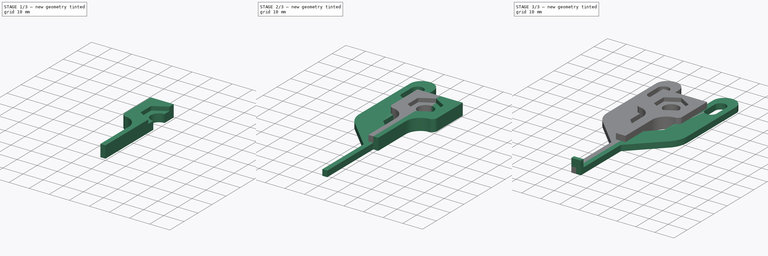
[diagram: build sequence overview — one tinted view per stage of 3, left to right]
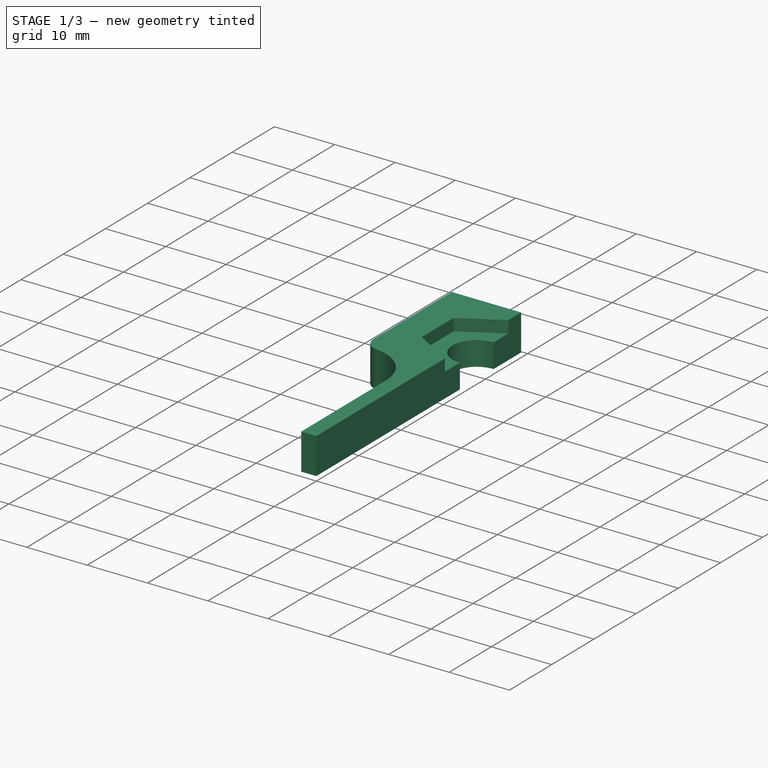
[diagram: stage 1 of 3 — iso view after this stage's code; geometry added in this stage tinted green]
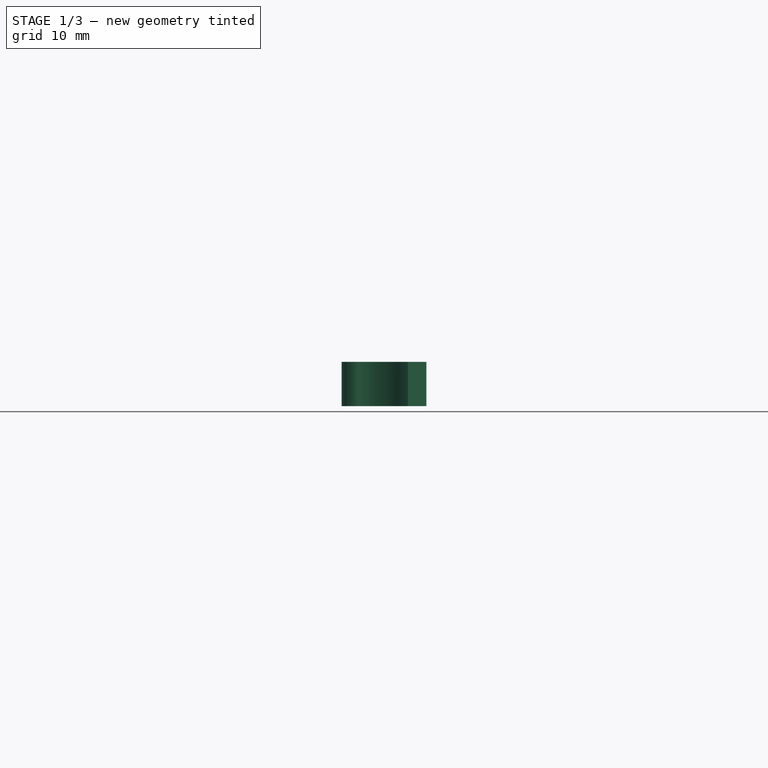
[diagram: stage 1 of 3 — front view after this stage's code; geometry added in this stage tinted green]
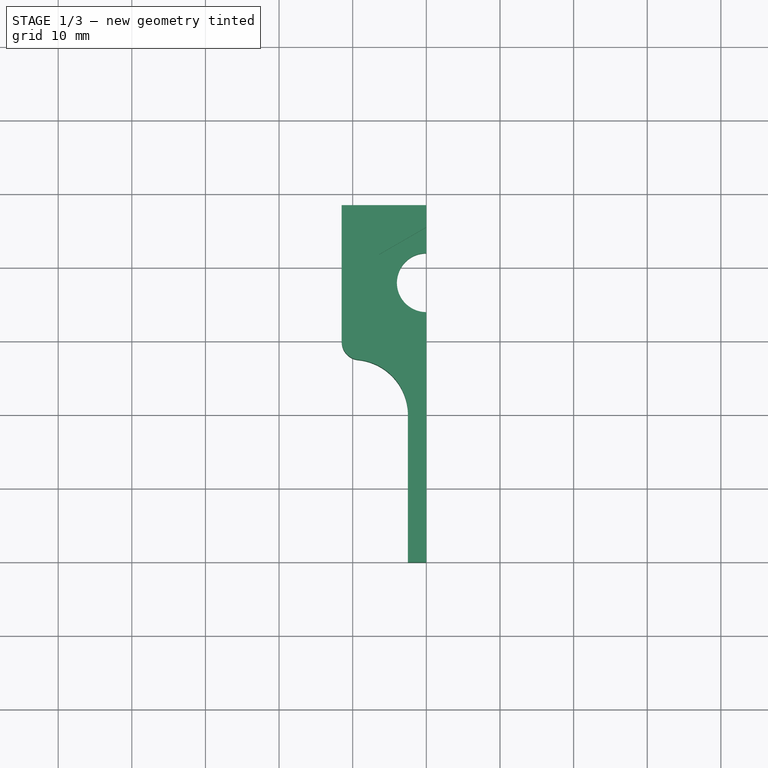
[diagram: stage 1 of 3 — top view after this stage's code; geometry added in this stage tinted green]
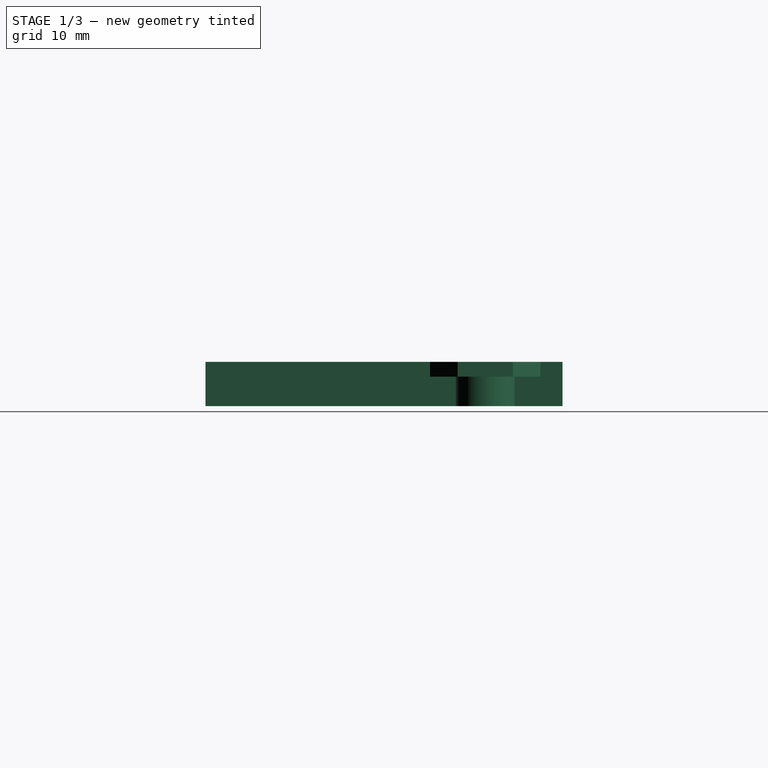
[diagram: stage 1 of 3 — right view after this stage's code; geometry added in this stage tinted green]
FCSTD DOCUMENT  (FreeCAD 0.19R24291 (Git))
Label: держатель для иголок 3
License: All rights reserved
LicenseURL: http://en.wikipedia.org/wiki/All_rights_reserved
objects: Sketcher::SketchObject×5, PartDesign::Pad×3, PartDesign::Mirrored×2, PartDesign::Body×2, PartDesign::Pocket×1, App::Part×1
note: 17 computed .brp shape members not serialized (recipe doc carries the construction recipe); baked Part::Feature solids carry a one-line shape summary decoded from their .brp

FEATURE [PartDesign::Body] Body
  Group = -> [Sketch,Pad,Sketch001,Pad001,Sketch002,Mirrored]
  Origin = -> Origin
  Tip = -> Mirrored
FEATURE [Sketcher::SketchObject] Sketch003
  FullyConstrained = false
  MapMode = 5
  Support = -> [XY_Plane002]
  sketch-geometry (20):
    g0: LineSegment StartX=-2.5 StartY=0 StartZ=0 EndX=-2.5 EndY=-20.0368 EndZ=0
    g1: LineSegment StartX=-2.5 StartY=-20.0368 StartZ=0 EndX=-9e-16 EndY=-20.0368 EndZ=0
    g2: ArcOfCircle CenterX=-10 CenterY=0 CenterZ=0 NormalX=0 NormalY=0 NormalZ=1 AngleXU=0 Radius=7.5 StartAngle=0 EndAngle=1.46759
    g3: LineSegment StartX=-9.22736 StartY=7.4601 StartZ=0 EndX=-9.25755 EndY=7.46322 EndZ=0
    g4: ArcOfCircle CenterX=-9 CenterY=9.94992 CenterZ=0 NormalX=0 NormalY=0 NormalZ=1 AngleXU=0 Radius=2.5 StartAngle=3.14159 EndAngle=4.60919
    g5: LineSegment StartX=-11.5 StartY=9.94992 StartZ=0 EndX=-11.5 EndY=28.4632 EndZ=0
    g6: LineSegment StartX=-11.5 StartY=28.4632 StartZ=0 EndX=0 EndY=28.4632 EndZ=0
    g7: ArcOfCircle CenterX=0 CenterY=17.9632 CenterZ=0 NormalX=0 NormalY=0 NormalZ=1 AngleXU=0 Radius=4 StartAngle=1.5708 EndAngle=4.71239
    g8: LineSegment StartX=-7e-16 StartY=-20.0368 StartZ=0 EndX=-7e-16 EndY=13.9632 EndZ=0
    g9: LineSegment StartX=2e-16 StartY=21.9632 StartZ=0 EndX=0 EndY=28.4632 EndZ=0
    g10: LineSegment StartX=0 StartY=17.9632 StartZ=0 EndX=0 EndY=28.4632 EndZ=0
    g11: LineSegment StartX=0 StartY=17.9632 StartZ=0 EndX=0 EndY=7.46322 EndZ=0
    g12: LineSegment StartX=0 StartY=24.4632 StartZ=0 EndX=-5.62917 EndY=21.2132 EndZ=0
    g13: LineSegment StartX=-5.62917 StartY=21.2132 StartZ=0 EndX=-5.62917 EndY=14.7132 EndZ=0
    g14: LineSegment StartX=-5.62917 StartY=14.7132 StartZ=0 EndX=9e-16 EndY=11.4632 EndZ=0
    g15: LineSegment StartX=9e-16 StartY=11.4632 StartZ=0 EndX=5.62917 EndY=14.7132 EndZ=0
    g16: LineSegment StartX=5.62917 StartY=14.7132 StartZ=0 EndX=5.62917 EndY=21.2132 EndZ=0
    g17: LineSegment StartX=5.62917 StartY=21.2132 StartZ=0 EndX=0 EndY=24.4632 EndZ=0
    g18: Circle CenterX=0 CenterY=17.9632 CenterZ=0 NormalX=0 NormalY=0 NormalZ=1 AngleXU=0 Radius=6.5
    g19: GeomPoint X=-6.5 Y=17.9632 Z=0
  constraints (55):
    c: Coincident(g0,g1)
    c: Horizontal(g1)
    c: Vertical(g0)
    c: PointOnObject(g2,g-1)
    c: Coincident(g2,g0)
    c: Coincident(g3,g2)
    c: Coincident(g4,g3)
    c: Coincident(g5,g4)
    c: Vertical(g5)
    c: PointOnObject(g6,g-2)
    c: Horizontal(g6)
    c: Tangent(g5,g4)
    c: Tangent(g4,g3)
    c: Tangent(g3,g2)
    c: Coincident(g6,g5)
    c: PointOnObject(g7,g-2)
    c: PointOnObject(g7,g-2)
    c: PointOnObject(g7,g-2)
    c: Coincident(g8,g7)
    c: Vertical(g8)
    c: Coincident(g9,g7)
    c: Coincident(g9,g6)
    c: Diameter(g7) = 8
    c: Distance(g7,g1) = 38
    c: Distance(g1) = 2.5
    c: PointOnObject(g0,g-1)
    c: Coincident(g10,g7)
    c: Diameter(g4) = 5
    c: Coincident(g6,g10)
    c: Diameter(g2) = 15
    c: Coincident(g11,g7)
    c: PointOnObject(g11,g8)
    c: Horizontal(g3,g11)
    c: Equal(g11,g10)
    c: Coincident(g8,g1)
    c: Coincident(g12,g13)
    c: Coincident(g13,g14)
    c: Coincident(g14,g15)
    c: Coincident(g15,g16)
    c: Coincident(g16,g17)
    c: Coincident(g17,g12)
    c: Equal(g12, g13-g17) x5
    c: PointOnObject(g12,g18)
    c: PointOnObject(g13,g18)
    c: PointOnObject(g14,g18)
    c: PointOnObject(g15,g18)
    c: PointOnObject(g16,g18)
    c: PointOnObject(g17,g18)
    c: Coincident(g18,g7)
    c: PointOnObject(g17,g9)
    c: Diameter(g18) = 13
    c: Distance(g12,g6) = 4
    c: PointOnObject(g19,g18)
    c: Horizontal(g19,g7)
    c: Distance(g19,g5) = 5
FEATURE [PartDesign::Pad] Pad002
  Direction = (1,1,1)
  Length = 6
  Length2 = 100
  Profile = -> Sketch003
  Type = 0
FEATURE [Sketcher::SketchObject] Sketch004
  ExternalGeometry = -> [Pad002]
  FullyConstrained = true
  MapMode = 5
  Placement = pos=(0,0,6) rot=(0,0,1;0rad)
  Support = -> [Pad002]
  sketch-geometry (7):
    g0: LineSegment StartX=0 StartY=25.4688 StartZ=0 EndX=-6.5 EndY=21.716 EndZ=0
    g1: LineSegment StartX=-6.5 StartY=21.716 StartZ=0 EndX=-6.5 EndY=14.2104 EndZ=0
    g2: LineSegment StartX=-6.5 StartY=14.2104 StartZ=0 EndX=8e-15 EndY=10.4577 EndZ=0
    g3: LineSegment StartX=8e-15 StartY=10.4577 StartZ=0 EndX=6.5 EndY=14.2104 EndZ=0
    g4: LineSegment StartX=6.5 StartY=14.2104 StartZ=0 EndX=6.5 EndY=21.716 EndZ=0
    g5: LineSegment StartX=6.5 StartY=21.716 StartZ=0 EndX=0 EndY=25.4688 EndZ=0
    g6: Circle CenterX=0 CenterY=17.9632 CenterZ=0 NormalX=0 NormalY=0 NormalZ=1 AngleXU=0 Radius=7.50555
  constraints (16):
    c: Coincident(g0,g1)
    c: Coincident(g1,g2)
    c: Coincident(g2,g3)
    c: Coincident(g3,g4)
    c: Coincident(g4,g5)
    c: Coincident(g5,g0)
    c: Equal(g0, g1-g5) x5
    c: PointOnObject(g0,g6)
    c: PointOnObject(g1,g6)
    c: PointOnObject(g2,g6)
    c: PointOnObject(g3,g6)
    c: PointOnObject(g4,g6)
    c: PointOnObject(g5,g6)
    c: Coincident(g6,g-3)
    c: PointOnObject(g5,g-2)
    c: Distance(g3,g1) = 13
FEATURE [PartDesign::Pocket] Pocket
  BaseFeature = -> Pad002
  Length = 2
  Length2 = 100
  Profile = -> Sketch004
  Type = 0
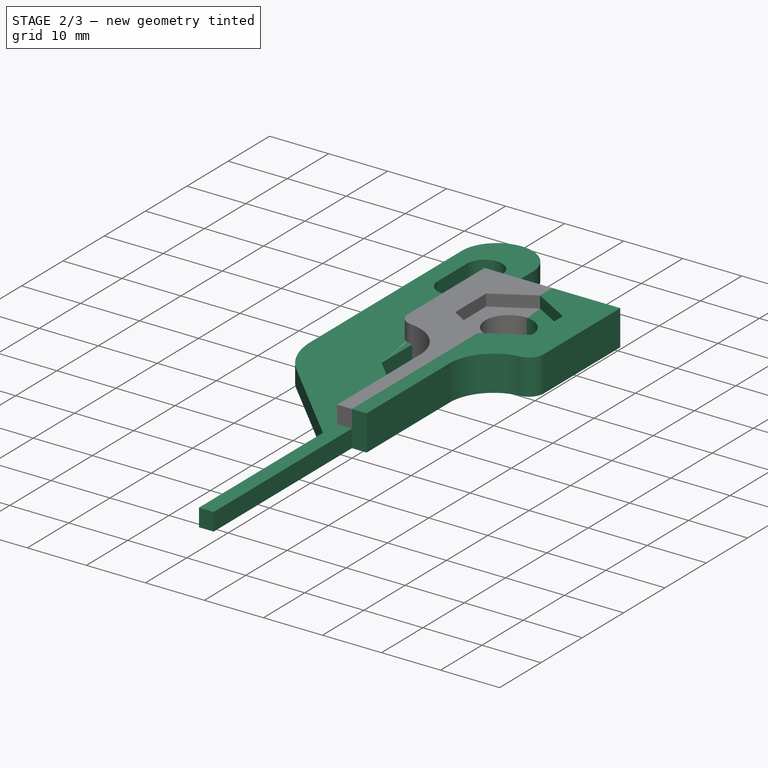
[diagram: stage 2 of 3 — iso view after this stage's code; geometry added in this stage tinted green]
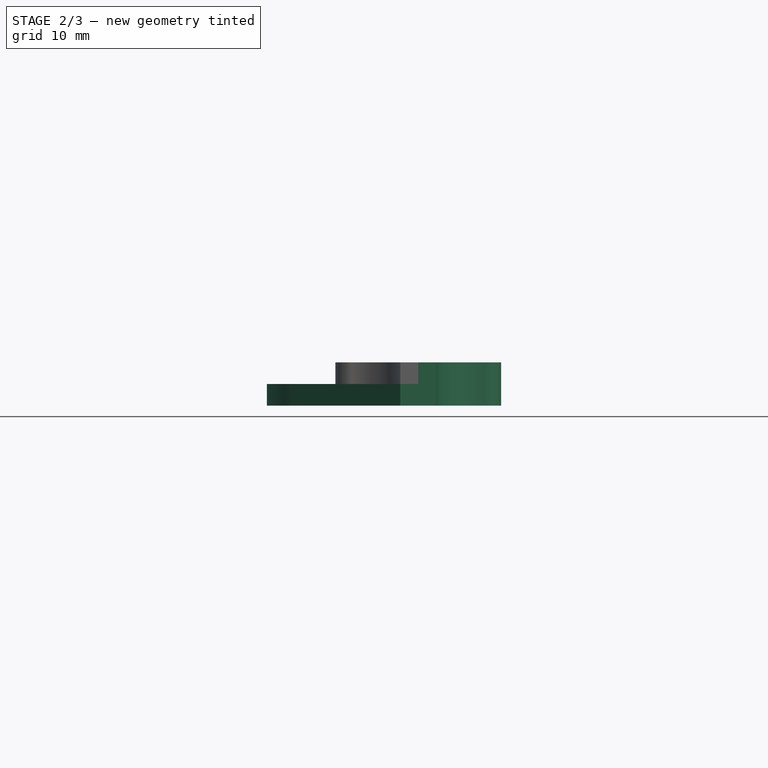
[diagram: stage 2 of 3 — front view after this stage's code; geometry added in this stage tinted green]
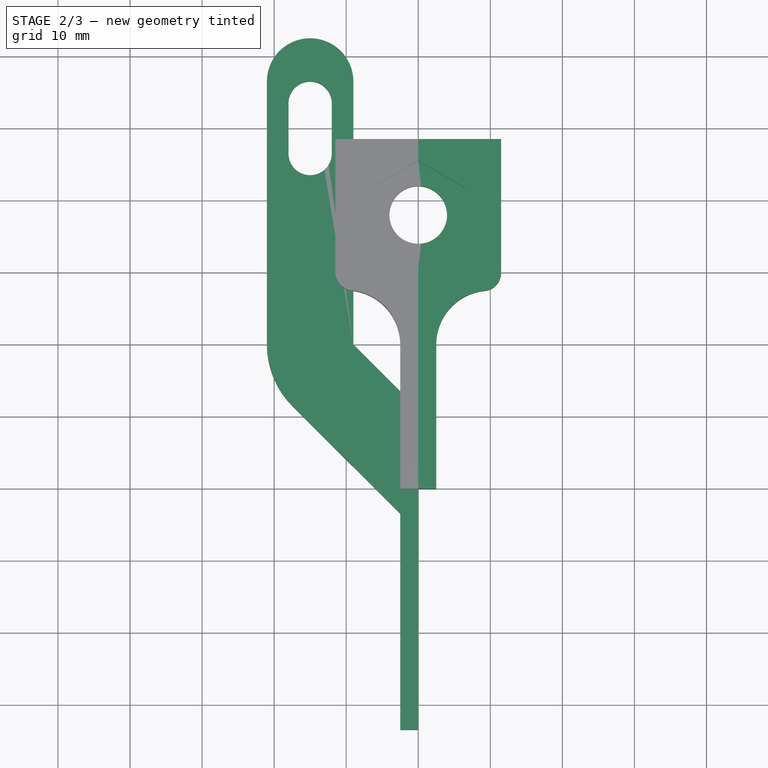
[diagram: stage 2 of 3 — top view after this stage's code; geometry added in this stage tinted green]
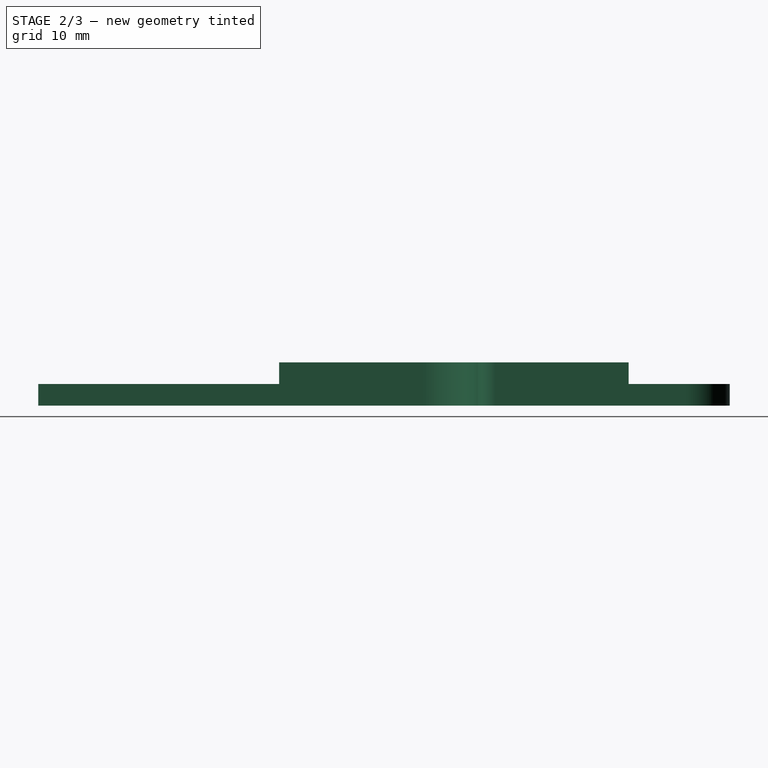
[diagram: stage 2 of 3 — right view after this stage's code; geometry added in this stage tinted green]
FEATURE [Sketcher::SketchObject] Sketch
  FullyConstrained = false
  MapMode = 5
  Support = -> [XY_Plane]
  sketch-geometry (16):
    g0: ArcOfCircle CenterX=-15 CenterY=33.5 CenterZ=0 NormalX=0 NormalY=0 NormalZ=1 AngleXU=0 Radius=3 StartAngle=-9e-16 EndAngle=3.14159
    g1: ArcOfCircle CenterX=-15 CenterY=26.5 CenterZ=0 NormalX=0 NormalY=0 NormalZ=1 AngleXU=0 Radius=3 StartAngle=3.14159 EndAngle=6.28319
    g2: LineSegment StartX=-18 StartY=33.5 StartZ=0 EndX=-18 EndY=26.5 EndZ=0
    g3: LineSegment StartX=-12 StartY=33.5 StartZ=0 EndX=-12 EndY=26.5 EndZ=0
    g4: ArcOfCircle CenterX=-15 CenterY=36.5 CenterZ=0 NormalX=0 NormalY=0 NormalZ=1 AngleXU=0 Radius=6 StartAngle=4e-16 EndAngle=3.14159
    g5: LineSegment StartX=-21 StartY=36.5 StartZ=0 EndX=-21 EndY=0 EndZ=0
    g6: LineSegment StartX=-9 StartY=36.5 StartZ=0 EndX=-9 EndY=0 EndZ=0
    g7: LineSegment StartX=-15 StartY=23.5 StartZ=0 EndX=-15 EndY=30 EndZ=0
    g8: LineSegment StartX=-15 StartY=30 StartZ=0 EndX=-15 EndY=36.5 EndZ=0
    g9: LineSegment StartX=-9 StartY=0 StartZ=0 EndX=0 EndY=-9 EndZ=0
    g10: LineSegment StartX=-2.5 StartY=-23.4706 StartZ=0 EndX=-2.5 EndY=-53.4706 EndZ=0
    g11: LineSegment StartX=-2.5 StartY=-23.4706 StartZ=0 EndX=-17.4853 EndY=-8.48527 EndZ=0
    g12: LineSegment StartX=-8.5237 StartY=-0.476298 StartZ=0 EndX=-17.009 EndY=-8.96158 EndZ=0
    g13: ArcOfCircle CenterX=-9 CenterY=0 CenterZ=0 NormalX=0 NormalY=0 NormalZ=1 AngleXU=0 Radius=12 StartAngle=3.14159 EndAngle=3.92699
    g14: LineSegment StartX=-2.5 StartY=-53.4706 StartZ=0 EndX=0 EndY=-53.4706 EndZ=0
    g15: LineSegment StartX=0 StartY=-53.4706 StartZ=0 EndX=0 EndY=-9 EndZ=0
  constraints (46):
    c: Tangent(g0,g3) = 1.5708
    c: Tangent(g0,g2) = -1.5708
    c: Tangent(g2,g1) = -1.5708
    c: Tangent(g3,g1) = 1.5708
    c: Vertical(g2)
    c: Equal(g0,g1)
    c: Diameter(g0) = 6
    c: Tangent(g4,g6) = 1.5708
    c: Tangent(g4,g5) = -1.5708
    c: Vertical(g5)
    c: Horizontal(g6,g5)
    c: PointOnObject(g5,g-1)
    c: PointOnObject(g7,g1)
    c: Vertical(g7)
    c: PointOnObject(g8,g0)
    c: Vertical(g8)
    c: Equal(g7,g8)
    c: Coincident(g8,g7)
    c: PointOnObject(g1,g7)
    c: Distance(g7,g-1) = 30
    c: Vertical(g6)
    c: Coincident(g8,g4)
    c: Diameter(g4) = 12
    c: Distance(g7,g-2) = 15
    c: Distance(g4,g7) = 13
    c: Coincident(g9,g6)
    c: PointOnObject(g9,g-2)
    c: Vertical(g10)
    c: Coincident(g11,g10)
    c: PointOnObject(g12,g9)
    c: PointOnObject(g12,g11)
    c: Perpendicular(g12,g9)
    c: Perpendicular(g11,g12)
    c: Distance(g10,g-2) = 2.5
    c: Distance(g12) = 12
    c: Coincident(g13,g6)
    c: Coincident(g13,g5)
    c: Coincident(g13,g11)
    c: Angle(g9,g6) = 2.35619
    c: DistanceY(g10,g10) = 30
    c: Coincident(g14,g10)
    c: PointOnObject(g14,g-2)
    c: Horizontal(g14)
    c: Coincident(g15,g14)
    c: Coincident(g15,g9)
    c: DistanceY(g14,g7) = 83.4706
FEATURE [PartDesign::Pad] Pad
  Direction = (1,1,1)
  Length = 3
  Length2 = 100
  Profile = -> Sketch
  Type = 0
FEATURE [PartDesign::Mirrored] Mirrored001
  BaseFeature = -> Pocket
  MirrorPlane = -> Sketch003 [V_Axis]
  Originals = -> [Pad002,Pocket]
FEATURE [PartDesign::Body] Body001
  Group = -> [Sketch003,Pad002,Sketch004,Pocket,Mirrored001]
  Origin = -> Origin002
  Tip = -> Mirrored001
FEATURE [App::Part] Part
  Group = -> [Body,Body001]
  Origin = -> Origin001
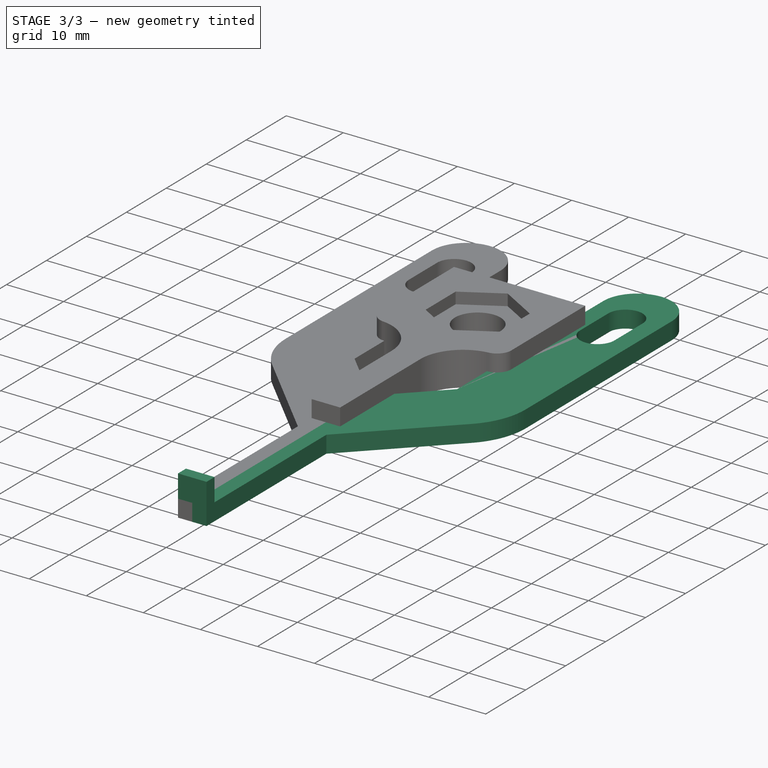
[diagram: stage 3 of 3 — iso view after this stage's code; geometry added in this stage tinted green]
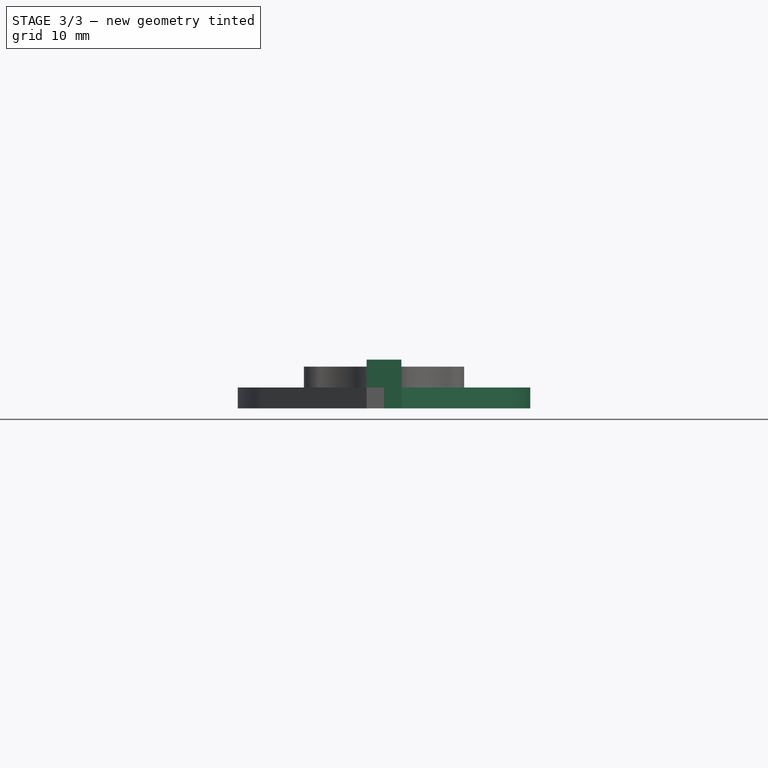
[diagram: stage 3 of 3 — front view after this stage's code; geometry added in this stage tinted green]
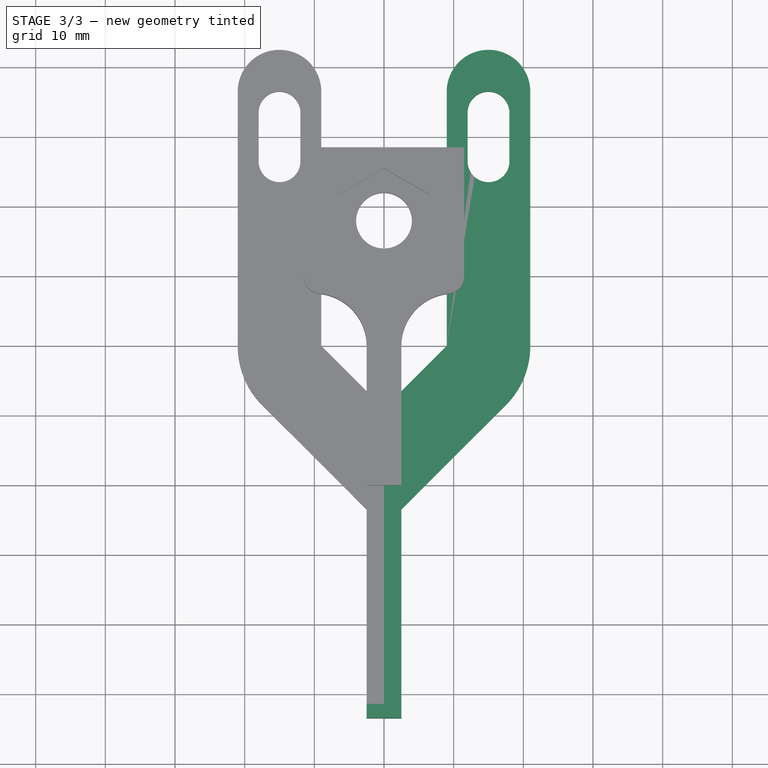
[diagram: stage 3 of 3 — top view after this stage's code; geometry added in this stage tinted green]
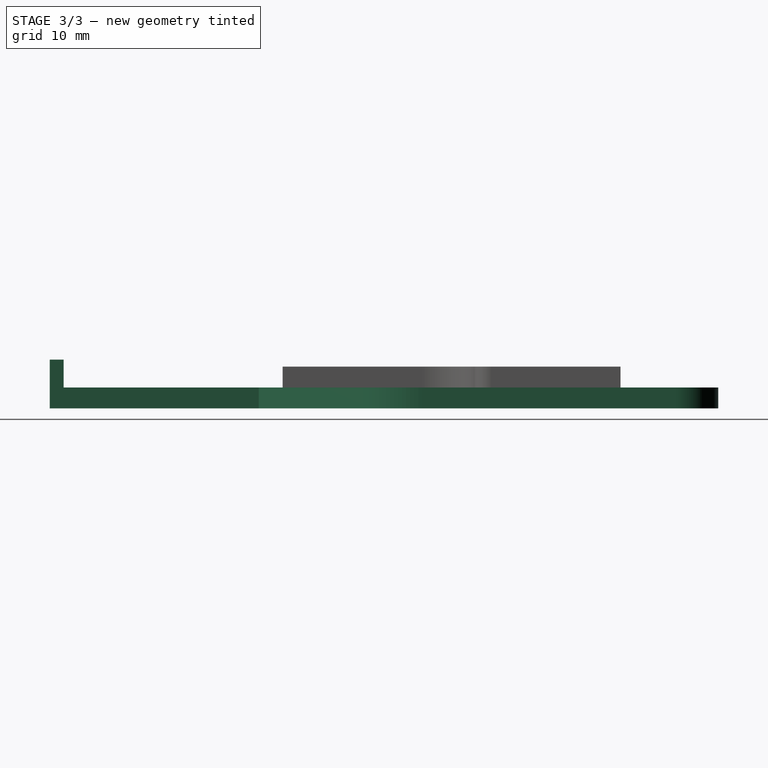
[diagram: stage 3 of 3 — right view after this stage's code; geometry added in this stage tinted green]
FEATURE [Sketcher::SketchObject] Sketch001
  ExternalGeometry = -> [Pad]
  FullyConstrained = true
  MapMode = 5
  Placement = pos=(0,0,3) rot=(0,0,1;0rad)
  Support = -> [Pad]
  sketch-geometry (4):
    g0: LineSegment StartX=-2.5 StartY=-53.4706 StartZ=0 EndX=0 EndY=-53.4706 EndZ=0
    g1: LineSegment StartX=0 StartY=-53.4706 StartZ=0 EndX=0 EndY=-51.4706 EndZ=0
    g2: LineSegment StartX=0 StartY=-51.4706 StartZ=0 EndX=-2.5 EndY=-51.4706 EndZ=0
    g3: LineSegment StartX=-2.5 StartY=-51.4706 StartZ=0 EndX=-2.5 EndY=-53.4706 EndZ=0
  constraints (11):
    c: Coincident(g0,g1)
    c: Coincident(g1,g2)
    c: Coincident(g2,g3)
    c: Coincident(g3,g0)
    c: Horizontal(g0)
    c: Horizontal(g2)
    c: Vertical(g1)
    c: Vertical(g3)
    c: Coincident(g0,g-3)
    c: PointOnObject(g1,g-2)
    c: Distance(g3) = 2
FEATURE [PartDesign::Pad] Pad001
  BaseFeature = -> Pad
  Direction = (1,1,1)
  Length = 4
  Length2 = 100
  Profile = -> Sketch001
  Type = 0
FEATURE [Sketcher::SketchObject] Sketch002
  ExternalGeometry = -> [Pad001]
  FullyConstrained = true
  MapMode = 5
  Placement = pos=(0,-51.4706,0) rot=(0,0.707107,0.707107;3.14159rad)
  Support = -> [Pad001]
  sketch-geometry (4):
    g0: LineSegment StartX=2.5 StartY=7 StartZ=0 EndX=0 EndY=7 EndZ=0
    g1: LineSegment StartX=0 StartY=7 StartZ=0 EndX=0 EndY=6 EndZ=0
    g2: LineSegment StartX=0 StartY=6 StartZ=0 EndX=2.5 EndY=6 EndZ=0
    g3: LineSegment StartX=2.5 StartY=6 StartZ=0 EndX=2.5 EndY=7 EndZ=0
  constraints (11):
    c: Coincident(g0,g1)
    c: Coincident(g1,g2)
    c: Coincident(g2,g3)
    c: Coincident(g3,g0)
    c: Horizontal(g0)
    c: Horizontal(g2)
    c: Vertical(g1)
    c: Vertical(g3)
    c: Coincident(g0,g-3)
    c: PointOnObject(g1,g-2)
    c: Distance(g3) = 1
FEATURE [PartDesign::Mirrored] Mirrored
  BaseFeature = -> Pad001
  MirrorPlane = -> Sketch001 [V_Axis]
  Originals = -> [Pad001,Pad]
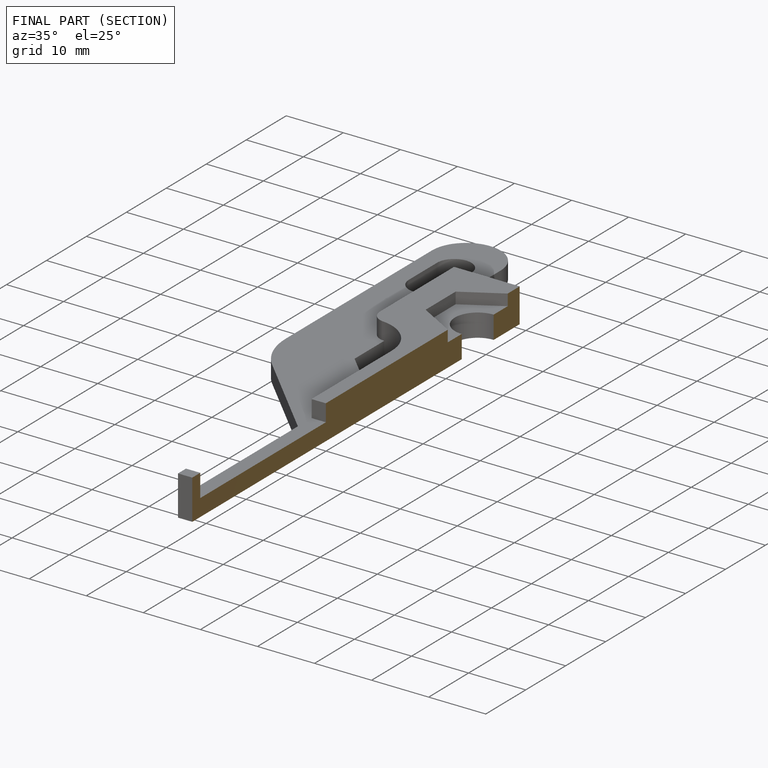
[diagram: finished part — half-section view (interior)]
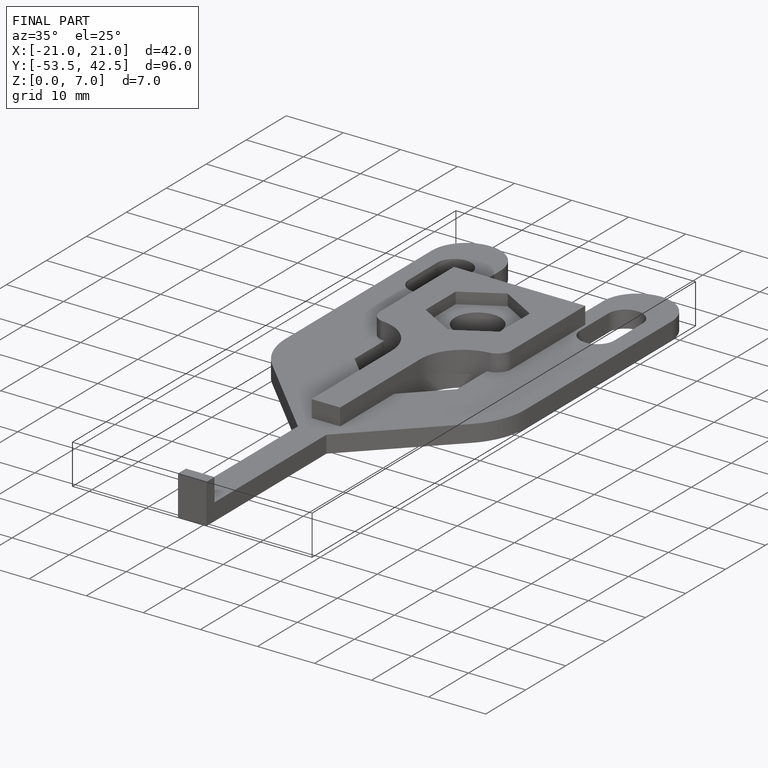
[diagram: finished part — iso view with bounding-box wireframe]
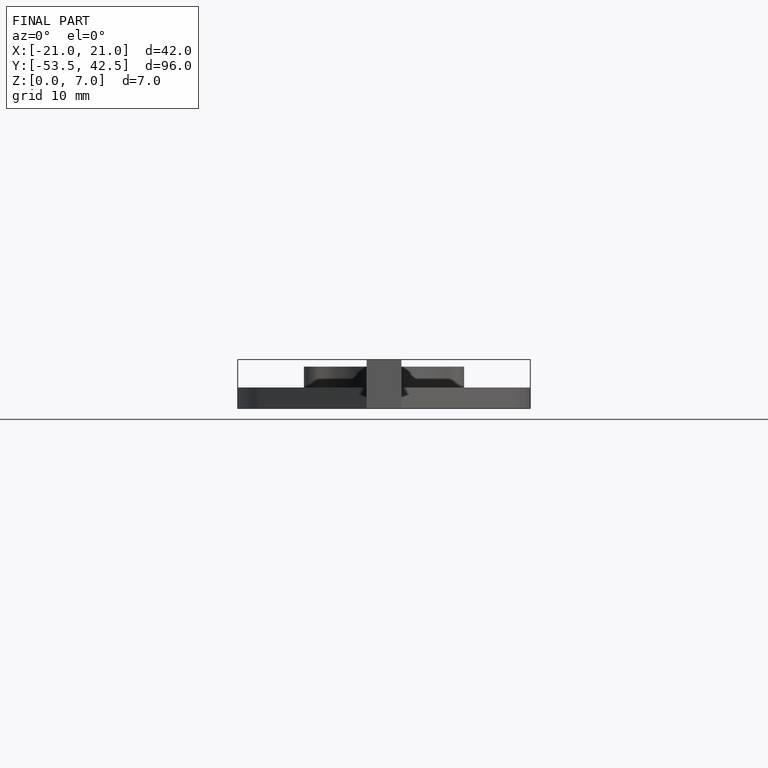
[diagram: finished part — front view with bounding-box wireframe]
